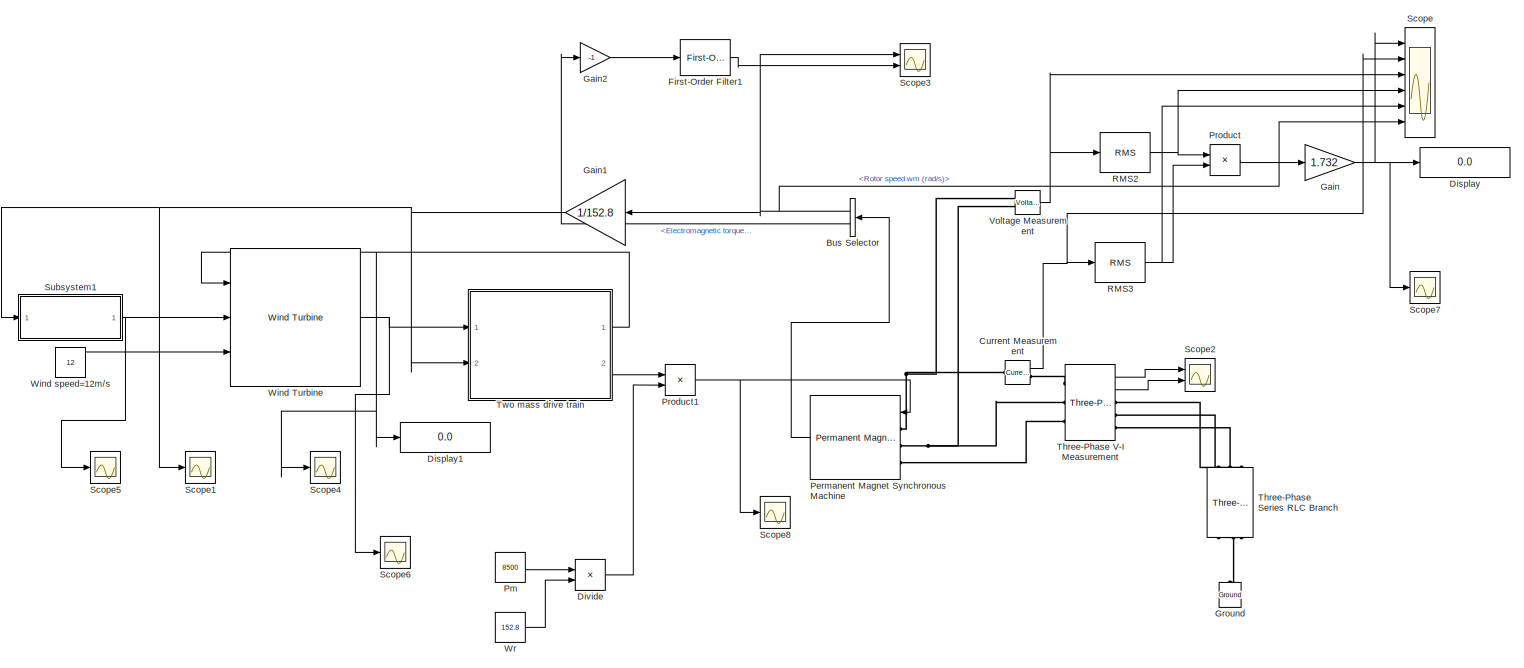
[diagram: root canvas - part 1/2, most of the canvas]
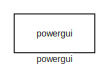
[diagram: root canvas - part 2/2, middle left region]
MODEL slx_d055d34806a1
KIND model
CONFIG AbsTol = auto
CONFIG EnableMultiTasking = off
CONFIG FixedStep = 10e-6
CONFIG MaxStep = auto
CONFIG MinStep = auto
CONFIG RelTol = 1e-3
CONFIG SampleTimeConstraint = Unconstrained
CONFIG SolverName = FixedStepDiscrete
CONFIG StartTime = 0.0
CONFIG StopTime = 5.09
BLOCK [BusSelector] Bus Selector
  OutputSignals = Rotor speed wm (rad/s),Electromagnetic torque Te (N*m)
  Ports = [1, 2]
BLOCK [Reference] Current Measurement  REF=spsCurrentMeasurementLib/Current Measurement
  Ports = [0, 1, 0, 0, 0, 1, 1]
  SourceBlock = spsCurrentMeasurementLib/Current Measurement
  SourceProductBaseCode = PS
  SourceType = Current Measurement
  UserDataPersistent = on
BLOCK [Display] Display
  Decimation = 1
  Ports = [1]
BLOCK [Display] Display1
  Decimation = 1
  Ports = [1]
BLOCK [Product] Divide
  Inputs = */
  Ports = [2, 1]
BLOCK [Reference] First-Order Filter1  REF=spsFirstOrderFilterLib/First-Order
Filter
  Ports = [1, 1]
  SourceBlock = spsFirstOrderFilterLib/First-Order\nFilter
  SourceProductBaseCode = PS
  SourceType = First-Order Filter
BLOCK [Gain] Gain
  Gain = 1.732
BLOCK [Gain] Gain1
  Gain = 1/152.8
  NameLocation = top
BLOCK [Gain] Gain2
  Gain = -1
BLOCK [Reference] Ground  REF=spsGroundLib/Ground
  NameLocation = right
  Ports = [0, 0, 0, 0, 0, 1]
  SourceBlock = spsGroundLib/Ground
  SourceProductBaseCode = PS
  SourceType = Ground
BLOCK [Reference] Permanent Magnet Synchronous Machine  REF=spsPermanentMagnetSynchronousMachineLib/Permanent Magnet
Synchronous Machine
  Ports = [1, 1, 0, 0, 0, 3]
  SourceBlock = spsPermanentMagnetSynchronousMachineLib/Permanent Magnet\nSynchronous Machine
  SourceProductBaseCode = PS
  SourceType = Permanent Magnet Synchronous Machine
BLOCK [Constant] Pm
  Value = 8500
BLOCK [Product] Product
  Ports = [2, 1]
BLOCK [Product] Product1
  Ports = [2, 1]
BLOCK [Reference] RMS2  REF=spsRMSLib/RMS
  Ports = [1, 1]
  SourceBlock = spsRMSLib/RMS
  SourceProductBaseCode = PS
  SourceType = RMS
BLOCK [Reference] RMS3  REF=spsRMSLib/RMS
  Ports = [1, 1]
  SourceBlock = spsRMSLib/RMS
  SourceProductBaseCode = PS
  SourceType = RMS
BLOCK [Scope] Scope
  Floating = off
  NumInputPorts = 6
  Ports = [6]
  ScopeSpecificationString = Simulink.scopes.TimeScopeBlockCfg('CurrentConfiguration', extmgr.ConfigurationSet(extmgr.Configuration('Core','General UI',true),extmgr.Configuration('Core','Source UI',true),extmgr.Configuration('Sources','WiredSimulink',true,'DataLoggingVariableName','ScopeData1'),extmgr.Configuration('Visuals','Time Domain',true,'SerializedDisplays',{struct('MinYLimReal','-2329.74547','MaxYLimReal','27970.86061...<+4975ch>
BLOCK [Scope] Scope1
  Floating = off
  NumInputPorts = 1
  Ports = [1]
  ScopeSpecificationString = Simulink.scopes.TimeScopeBlockCfg('CurrentConfiguration', extmgr.ConfigurationSet(extmgr.Configuration('Core','General UI',true),extmgr.Configuration('Core','Source UI',true),extmgr.Configuration('Sources','WiredSimulink',true,'DataLoggingVariableName','ScopeData2'),extmgr.Configuration('Visuals','Time Domain',true,'SerializedDisplays',{struct('MinYLimReal','-0.14806','MaxYLimReal','1.33253','YLab...<+1457ch>
BLOCK [Scope] Scope2
  Floating = off
  NumInputPorts = 2
  Ports = [2]
  ScopeSpecificationString = Simulink.scopes.TimeScopeBlockCfg('CurrentConfiguration', extmgr.ConfigurationSet(extmgr.Configuration('Core','General UI',true),extmgr.Configuration('Core','Source UI',true),extmgr.Configuration('Sources','WiredSimulink',true,'DataLoggingVariableName','ScopeData2'),extmgr.Configuration('Visuals','Time Domain',true,'SerializedDisplays',{struct('MinYLimReal','-830.55755','MaxYLimReal','830.45583','...<+1658ch>
BLOCK [Scope] Scope3
  Floating = off
  NumInputPorts = 2
  Ports = [2]
  ScopeSpecificationString = Simulink.scopes.TimeScopeBlockCfg('CurrentConfiguration', extmgr.ConfigurationSet(extmgr.Configuration('Core','General UI',true),extmgr.Configuration('Core','Source UI',true),extmgr.Configuration('Sources','WiredSimulink',true,'DataLoggingVariableName','ScopeData3'),extmgr.Configuration('Visuals','Time Domain',true,'SerializedDisplays',{struct('MinYLimReal','-22.62347','MaxYLimReal','203.61125','Y...<+2047ch>
BLOCK [Scope] Scope4
  Floating = off
  NumInputPorts = 1
  Ports = [1]
  ScopeSpecificationString = Simulink.scopes.TimeScopeBlockCfg('CurrentConfiguration', extmgr.ConfigurationSet(extmgr.Configuration('Core','General UI',true),extmgr.Configuration('Core','Source UI',true),extmgr.Configuration('Sources','WiredSimulink',true,'DataLoggingVariableName','ScopeData3'),extmgr.Configuration('Visuals','Time Domain',true,'SerializedDisplays',{struct('MinYLimReal','0.2406','MaxYLimReal','1.08438','YLabel...<+1375ch>
BLOCK [Scope] Scope5
  Floating = off
  NumInputPorts = 1
  Ports = [1]
  ScopeSpecificationString = Simulink.scopes.TimeScopeBlockCfg('CurrentConfiguration', extmgr.ConfigurationSet(extmgr.Configuration('Core','General UI',true),extmgr.Configuration('Core','Source UI',true),extmgr.Configuration('Sources','WiredSimulink',true,'DataLoggingVariableName','ScopeData4'),extmgr.Configuration('Visuals','Time Domain',true,'SerializedDisplays',{struct('MinYLimReal','-0.02533','MaxYLimReal','0.22797','YLab...<+1369ch>
BLOCK [Scope] Scope6
  Floating = off
  NumInputPorts = 1
  Ports = [1]
  ScopeSpecificationString = Simulink.scopes.TimeScopeBlockCfg('CurrentConfiguration', extmgr.ConfigurationSet(extmgr.Configuration('Core','General UI',true),extmgr.Configuration('Core','Source UI',true),extmgr.Configuration('Sources','WiredSimulink',true,'DataLoggingVariableName','ScopeData5'),extmgr.Configuration('Visuals','Time Domain',true,'SerializedDisplays',{struct('MinYLimReal','-0.86639','MaxYLimReal','-0.06194','YLa...<+1373ch>
BLOCK [Scope] Scope7
  Floating = off
  NumInputPorts = 1
  Ports = [1]
  ScopeSpecificationString = Simulink.scopes.TimeScopeBlockCfg('CurrentConfiguration', extmgr.ConfigurationSet(extmgr.Configuration('Core','General UI',true),extmgr.Configuration('Core','Source UI',true),extmgr.Configuration('Sources','WiredSimulink',true,'DataLoggingVariableName','ScopeData6'),extmgr.Configuration('Visuals','Time Domain',true,'SerializedDisplays',{struct('MinYLimReal','-2329.74547','MaxYLimReal','27970.86061...<+1389ch>
BLOCK [Scope] Scope8
  Floating = off
  NumInputPorts = 1
  Ports = [1]
  ScopeSpecificationString = Simulink.scopes.TimeScopeBlockCfg('CurrentConfiguration', extmgr.ConfigurationSet(extmgr.Configuration('Core','General UI',true),extmgr.Configuration('Core','Source UI',true),extmgr.Configuration('Sources','WiredSimulink',true,'DataLoggingVariableName','ScopeData7'),extmgr.Configuration('Visuals','Time Domain',true,'SerializedDisplays',{struct('MinYLimReal','-123.0249','MaxYLimReal','-5.34133','YL...<+1410ch>
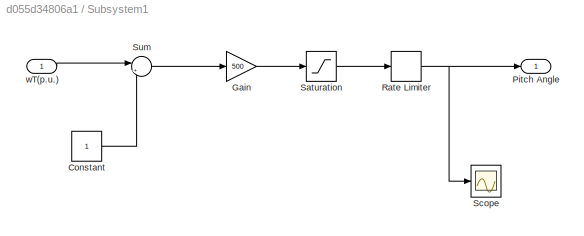
BLOCK [SubSystem] Subsystem1
  Ports = [1, 1]
  RequestExecContextInheritance = off
BLOCK [Constant] Subsystem1/Constant
BLOCK [Gain] Subsystem1/Gain
  Gain = 500
BLOCK [Outport] Subsystem1/Pitch Angle
BLOCK [RateLimiter] Subsystem1/Rate Limiter
  FallingSlewLimit = -2
  RisingSlewLimit = 2
  SampleTimeMode = inherited
BLOCK [Saturate] Subsystem1/Saturation
  LowerLimit = 0
  UpperLimit = 45
BLOCK [Scope] Subsystem1/Scope
  Floating = off
  NumInputPorts = 1
  Ports = [1]
  ScopeSpecificationString = Simulink.scopes.TimeScopeBlockCfg('CurrentConfiguration', extmgr.ConfigurationSet(extmgr.Configuration('Core','General UI',true),extmgr.Configuration('Core','Source UI',true),extmgr.Configuration('Sources','WiredSimulink',true,'DataLoggingVariableName','ScopeData1'),extmgr.Configuration('Visuals','Time Domain',true,'SerializedDisplays',{struct('MinYLimReal','-0.02544','MaxYLimReal','0.22892','YLab...<+1406ch>
BLOCK [Sum] Subsystem1/Sum
  Inputs = |+-
  Ports = [2, 1]
BLOCK [Inport] Subsystem1/wT(p.u.)
BLOCK [Reference] Three-Phase Series RLC Branch  REF=spsThreePhaseSeriesRLCBranchLib/Three-Phase
Series RLC Branch
  AttributesFormatString = \n
  NameLocation = left
  Ports = [0, 0, 0, 0, 0, 3, 3]
  SourceBlock = spsThreePhaseSeriesRLCBranchLib/Three-Phase\nSeries RLC Branch
  SourceProductBaseCode = PS
  SourceType = Three-Phase Series RLC Branch
BLOCK [Reference] Three-Phase V-I Measurement  REF=spsThreePhaseVIMeasurementLib/Three-Phase
V-I Measurement
  Ports = [0, 2, 0, 0, 0, 3, 3]
  SourceBlock = spsThreePhaseVIMeasurementLib/Three-Phase\nV-I Measurement
  SourceProductBaseCode = PS
  SourceType = Three-Phase VI Measurement
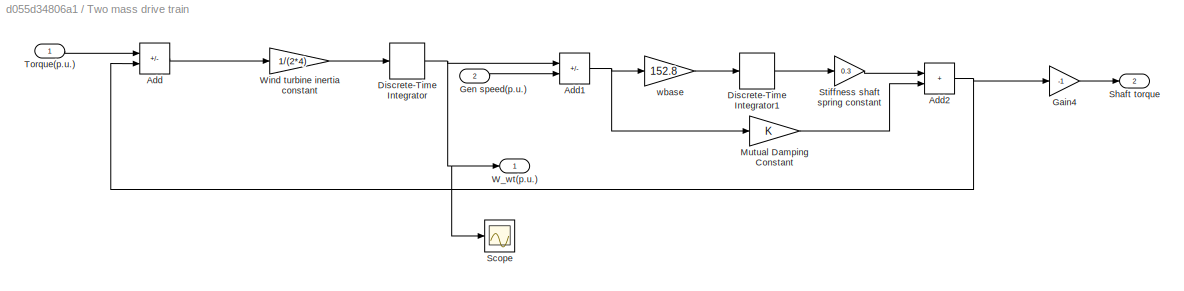
BLOCK [SubSystem] Two mass drive train
  Ports = [2, 2]
  RequestExecContextInheritance = off
BLOCK [Sum] Two mass drive train/Add
  IconShape = rectangular
  Inputs = +-
  Ports = [2, 1]
BLOCK [Sum] Two mass drive train/Add1
  IconShape = rectangular
  Inputs = +-
  Ports = [2, 1]
BLOCK [Sum] Two mass drive train/Add2
  IconShape = rectangular
  Ports = [2, 1]
BLOCK [DiscreteIntegrator] Two mass drive train/Discrete-Time Integrator
  ICPrevOutput = DiscIntNeverNeededParam
  ICPrevScaledInput = DiscIntNeverNeededParam
  InitialCondition = 1
  InitialConditionSetting = Auto
  Ports = [1, 1]
  SampleTime = 50e-6
BLOCK [DiscreteIntegrator] Two mass drive train/Discrete-Time Integrator1
  ICPrevOutput = DiscIntNeverNeededParam
  ICPrevScaledInput = DiscIntNeverNeededParam
  InitialCondition = 1/0.3
  InitialConditionSetting = Auto
  Ports = [1, 1]
  SampleTime = 50e-6
BLOCK [Gain] Two mass drive train/Gain4
  Gain = -1
BLOCK [Inport] Two mass drive train/Gen speed(p.u.)
  Port = 2
BLOCK [Gain] Two mass drive train/Mutual Damping Constant
BLOCK [Scope] Two mass drive train/Scope
  Floating = off
  NumInputPorts = 1
  Ports = [1]
  ScopeSpecificationString = Simulink.scopes.TimeScopeBlockCfg('CurrentConfiguration', extmgr.ConfigurationSet(extmgr.Configuration('Core','General UI',true),extmgr.Configuration('Core','Source UI',true),extmgr.Configuration('Sources','WiredSimulink',true,'DataLoggingVariableName','ScopeData1'),extmgr.Configuration('Visuals','Time Domain',true,'SerializedDisplays',{struct('MinYLimReal','0.07101','MaxYLimReal','1.10322','YLabe...<+1381ch>
BLOCK [Outport] Two mass drive train/Shaft torque
  Port = 2
BLOCK [Gain] Two mass drive train/Stiffness shaft spring constant
  Gain = 0.3
BLOCK [Inport] Two mass drive train/Torque(p.u.)
BLOCK [Outport] Two mass drive train/W_wt(p.u.)
BLOCK [Gain] Two mass drive train/Wind turbine inertia constant
  Gain = 1/(2*4)
BLOCK [Gain] Two mass drive train/wbase
  Gain = 152.8
BLOCK [Reference] Voltage Measurement  REF=spsVoltageMeasurementLib/Voltage Measurement
  Ports = [0, 1, 0, 0, 0, 2]
  SourceBlock = spsVoltageMeasurementLib/Voltage Measurement
  SourceProductBaseCode = PS
  SourceType = Voltage Measurement
  UserDataPersistent = on
BLOCK [Reference] Wind Turbine  REF=spsWindTurbineLib/Wind Turbine
  Ports = [3, 1]
  SourceBlock = spsWindTurbineLib/Wind Turbine
  SourceProductBaseCode = PS
  SourceType = Wind Turbine
BLOCK [Constant] Wind speed=12m//s
  Value = 12
BLOCK [Constant] Wr
  Value = 152.8
BLOCK [Reference] powergui  REF=spspowerguiLib/powergui
  Ports = []
  Priority = 1
  SourceBlock = spspowerguiLib/powergui
  SourceProductBaseCode = PS
  SourceType = PSB option menu block
NET Bus Selector:1 -> Gain1:1, Scope3:1, Scope:6
LINE Bus Selector:2 -> Gain2:1
NET Current Measurement:1 -> RMS3:1, Scope:2
LINE Divide:1 -> Product1:2
LINE First-Order Filter1:1 -> Scope3:2
NET Gain1:1 -> Scope1:1, Subsystem1:1, Two mass drive train:2
LINE Gain2:1 -> First-Order Filter1:1
NET Gain:1 -> Display:1, Scope7:1, Scope:1
LINE Permanent Magnet Synchronous Machine:1 -> Bus Selector:1
LINE Pm:1 -> Divide:1
NET Product1:1 -> Permanent Magnet Synchronous Machine:1, Scope8:1
LINE Product:1 -> Gain:1
NET RMS2:1 -> Product:1, Scope:4
NET RMS3:1 -> Product:2, Scope:5
LINE Subsystem1/Constant:1 -> Subsystem1/Sum:2
LINE Subsystem1/Gain:1 -> Subsystem1/Saturation:1
NET Subsystem1/Rate Limiter:1 -> Subsystem1/Pitch Angle:1, Subsystem1/Scope:1
LINE Subsystem1/Saturation:1 -> Subsystem1/Rate Limiter:1
LINE Subsystem1/Sum:1 -> Subsystem1/Gain:1
LINE Subsystem1/wT(p.u.):1 -> Subsystem1/Sum:1
NET Subsystem1:1 -> Scope5:1, Wind Turbine:2
LINE Three-Phase V-I Measurement:1 -> Scope2:1
LINE Three-Phase V-I Measurement:2 -> Scope2:2
NET Two mass drive train/Add1:1 -> Two mass drive train/Mutual Damping Constant:1, Two mass drive train/wbase:1
NET Two mass drive train/Add2:1 -> Two mass drive train/Add:2, Two mass drive train/Gain4:1
LINE Two mass drive train/Add:1 -> Two mass drive train/Wind turbine inertia constant:1
LINE Two mass drive train/Discrete-Time Integrator1:1 -> Two mass drive train/Stiffness shaft spring constant:1
NET Two mass drive train/Discrete-Time Integrator:1 -> Two mass drive train/Add1:1, Two mass drive train/Scope:1, Two mass drive train/W_wt(p.u.):1
LINE Two mass drive train/Gain4:1 -> Two mass drive train/Shaft torque:1
LINE Two mass drive train/Gen speed(p.u.):1 -> Two mass drive train/Add1:2
LINE Two mass drive train/Mutual Damping Constant:1 -> Two mass drive train/Add2:2
LINE Two mass drive train/Stiffness shaft spring constant:1 -> Two mass drive train/Add2:1
LINE Two mass drive train/Torque(p.u.):1 -> Two mass drive train/Add:1
LINE Two mass drive train/Wind turbine inertia constant:1 -> Two mass drive train/Discrete-Time Integrator:1
LINE Two mass drive train/wbase:1 -> Two mass drive train/Discrete-Time Integrator1:1
NET Two mass drive train:1 -> Display1:1, Scope4:1, Wind Turbine:1
LINE Two mass drive train:2 -> Product1:1
NET Voltage Measurement:1 -> RMS2:1, Scope:3
NET Wind Turbine:1 -> Scope6:1, Two mass drive train:1
LINE Wind speed=12m//s:1 -> Wind Turbine:3
LINE Wr:1 -> Divide:2
PNET net1: Current Measurement:LConn1 -- Permanent Magnet Synchronous Machine:LConn1 -- Voltage Measurement:LConn1
PLINE Current Measurement:RConn1 -- Three-Phase V-I Measurement:LConn1
PNET net2: Ground:LConn1 -- Three-Phase Series RLC Branch:RConn1 -- Three-Phase Series RLC Branch:RConn2 -- Three-Phase Series RLC Branch:RConn3
PNET net3: Permanent Magnet Synchronous Machine:LConn2 -- Three-Phase V-I Measurement:LConn2 -- Voltage Measurement:LConn2
PLINE Permanent Magnet Synchronous Machine:LConn3 -- Three-Phase V-I Measurement:LConn3
PLINE Three-Phase Series RLC Branch:LConn1 -- Three-Phase V-I Measurement:RConn1
PLINE Three-Phase Series RLC Branch:LConn2 -- Three-Phase V-I Measurement:RConn2
PLINE Three-Phase Series RLC Branch:LConn3 -- Three-Phase V-I Measurement:RConn3
note: NET lines group one-source signal fan-out (src -> all destinations, sorted); 1:1 wires keep LINE; PNET lines group multi-terminal physical nets as a canonical sorted terminal list (undirected conserving connections); 2-terminal nets keep the pairwise PLINE form
